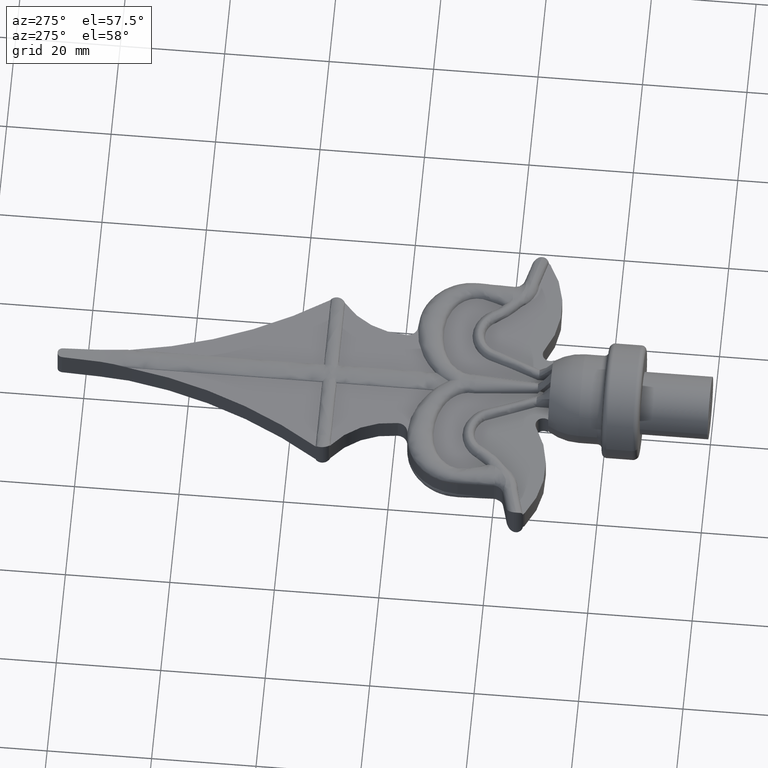
[diagram: clean part render]
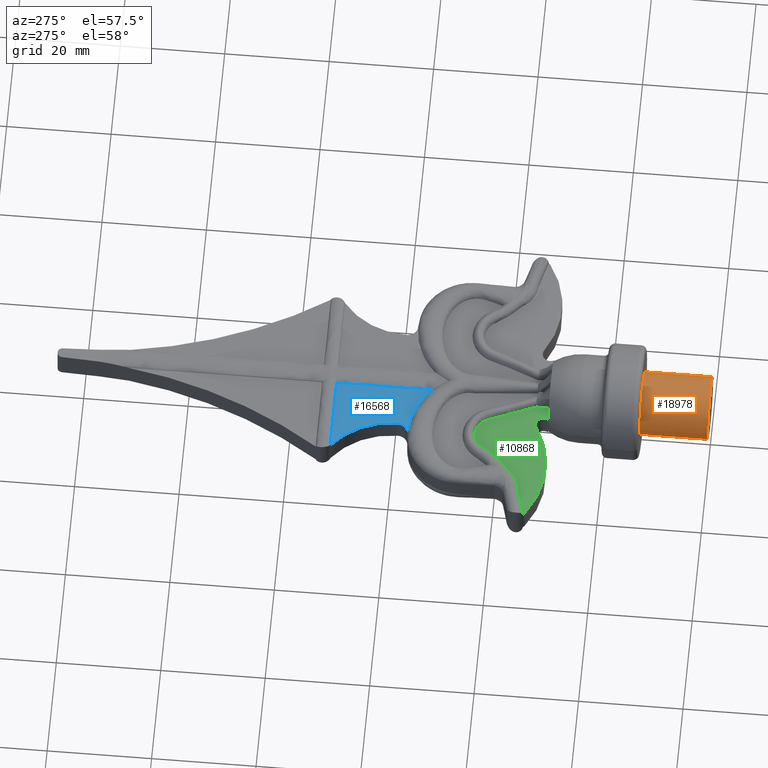
[diagram: same view with three faces highlighted in distinct colors, each labeled with its STEP entity id]
A machine part, auxiliary view with three faces highlighted in distinct colors.
Their STEP definitions:

[orange] entity #18978 — the highlighted cylindrical surface (bore or boss wall) has radius 6 mm, axis along (-0, 1, -0).
#1742 = DIRECTION ( 'NONE',  ( -1.000000000000000000, 0.000000000000000000, 0.000000000000000000 ) ) ;
#3047 = CYLINDRICAL_SURFACE ( 'NONE', #8148, 6.000000000000000000 ) ;
#3052 = CARTESIAN_POINT ( 'NONE',  ( -6.000000000000000000, -1.118453539899895328E-17, 0.000000000000000000 ) ) ;
#4121 = DIRECTION ( 'NONE',  ( -1.864089233166492342E-18, 1.000000000000000000, -0.000000000000000000 ) ) ;
#4373 = ORIENTED_EDGE ( 'NONE', *, *, #15770, .F. ) ;
#5083 = AXIS2_PLACEMENT_3D ( 'NONE', #8704, #4121, #16316 ) ;
#5692 = CARTESIAN_POINT ( 'NONE',  ( 0.000000000000000000, 0.000000000000000000, 0.000000000000000000 ) ) ;
#5894 = DIRECTION ( 'NONE',  ( -1.864089233166492342E-18, 1.000000000000000000, -0.000000000000000000 ) ) ;
#7045 = VERTEX_POINT ( 'NONE', #3052 ) ;
#7116 = CIRCLE ( 'NONE', #14024, 6.000000000000000000 ) ;
#7944 = CARTESIAN_POINT ( 'NONE',  ( -5.683531300914551683E-17, 30.48958815807356615, 0.000000000000000000 ) ) ;
#8148 = AXIS2_PLACEMENT_3D ( 'NONE', #7944, #14108, #1742 ) ;
#8704 = CARTESIAN_POINT ( 'NONE',  ( -2.423316003116439928E-17, 13.00000000000000178, 0.000000000000000000 ) ) ;
#10043 = EDGE_LOOP ( 'NONE', ( #19473 ) ) ;
#13666 = CARTESIAN_POINT ( 'NONE',  ( -6.000000000000000000, 13.00000000000000178, 0.000000000000000000 ) ) ;
#14024 = AXIS2_PLACEMENT_3D ( 'NONE', #5692, #5894, #17896 ) ;
#14108 = DIRECTION ( 'NONE',  ( -1.864089233166492342E-18, 1.000000000000000000, -0.000000000000000000 ) ) ;
#14517 = EDGE_CURVE ( 'NONE', #7045, #7045, #7116, .T. ) ;
#14990 = CIRCLE ( 'NONE', #5083, 6.000000000000000000 ) ;
#15184 = VERTEX_POINT ( 'NONE', #13666 ) ;
#15231 = FACE_OUTER_BOUND ( 'NONE', #10043, .T. ) ;
#15770 = EDGE_CURVE ( 'NONE', #15184, #15184, #14990, .T. ) ;
#16316 = DIRECTION ( 'NONE',  ( -1.000000000000000000, 0.000000000000000000, 0.000000000000000000 ) ) ;
#16751 = EDGE_LOOP ( 'NONE', ( #4373 ) ) ;
#17896 = DIRECTION ( 'NONE',  ( -1.000000000000000000, -1.864089233166492342E-18, 0.000000000000000000 ) ) ;
#18978 = ADVANCED_FACE ( 'NONE', ( #19764, #15231 ), #3047, .T. ) ;
#19473 = ORIENTED_EDGE ( 'NONE', *, *, #14517, .T. ) ;
#19764 = FACE_OUTER_BOUND ( 'NONE', #16751, .T. ) ;

[blue] entity #16568 — the highlighted planar face has unit normal (-0, 0, 1).
#352 = AXIS2_PLACEMENT_3D ( 'NONE', #13526, #18126, #12109 ) ;
#579 = CARTESIAN_POINT ( 'NONE',  ( -16.20000000000000284, 71.40000000000003411, 2.250000000000000444 ) ) ;
#1074 = CARTESIAN_POINT ( 'NONE',  ( -12.00000000000000000, 56.99999999999999289, 2.250000000000000444 ) ) ;
#2100 = FACE_OUTER_BOUND ( 'NONE', #2759, .T. ) ;
#2101 = DIRECTION ( 'NONE',  ( 1.000000000000000000, -0.000000000000000000, -0.000000000000000000 ) ) ;
#2413 = CARTESIAN_POINT ( 'NONE',  ( -10.00000000000000178, 58.99999999999999289, 2.250000000000000444 ) ) ;
#2493 = ORIENTED_EDGE ( 'NONE', *, *, #11876, .T. ) ;
#2523 = EDGE_CURVE ( 'NONE', #6347, #18268, #12232, .T. ) ;
#2615 = CARTESIAN_POINT ( 'NONE',  ( -4.596722235691423464, 55.39362691858608656, 2.250000000000000444 ) ) ;
#2759 = EDGE_LOOP ( 'NONE', ( #7895, #18683, #19109, #2493, #18676 ) ) ;
#3224 = PLANE ( 'NONE',  #3559 ) ;
#3559 = AXIS2_PLACEMENT_3D ( 'NONE', #9006, #19700, #10539 ) ;
#4460 = EDGE_CURVE ( 'NONE', #14388, #17082, #17192, .T. ) ;
#5526 = DIRECTION ( 'NONE',  ( -0.000000000000000000, -0.000000000000000000, -1.000000000000000000 ) ) ;
#6347 = VERTEX_POINT ( 'NONE', #579 ) ;
#6425 = CARTESIAN_POINT ( 'NONE',  ( -2.000000000000042633, 129.5000000000000000, 2.250000000000000444 ) ) ;
#6866 = VERTEX_POINT ( 'NONE', #14698 ) ;
#7895 = ORIENTED_EDGE ( 'NONE', *, *, #11332, .T. ) ;
#8088 = CARTESIAN_POINT ( 'NONE',  ( 19.99999999999998224, 71.40000000000003411, 2.250000000000000444 ) ) ;
#9006 = CARTESIAN_POINT ( 'NONE',  ( 0.000000000000000000, 0.000000000000000000, 2.250000000000000444 ) ) ;
#10163 = CARTESIAN_POINT ( 'NONE',  ( -1.999999999999988676, 52.85543771738596064, 2.250000000000000444 ) ) ;
#10539 = DIRECTION ( 'NONE',  ( 1.000000000000000000, 0.000000000000000000, 0.000000000000000000 ) ) ;
#11111 = DIRECTION ( 'NONE',  ( 4.081702296416009587E-16, -1.000000000000000000, 0.000000000000000000 ) ) ;
#11210 = EDGE_CURVE ( 'NONE', #18268, #6866, #13173, .T. ) ;
#11332 = EDGE_CURVE ( 'NONE', #17082, #6866, #16621, .T. ) ;
#11725 = VECTOR ( 'NONE', #11111, 1000.000000000000000 ) ;
#11876 = EDGE_CURVE ( 'NONE', #6347, #14388, #16499, .T. ) ;
#12109 = DIRECTION ( 'NONE',  ( -1.000000000000000000, 0.000000000000000000, 0.000000000000000000 ) ) ;
#12232 = LINE ( 'NONE', #8088, #19409 ) ;
#13173 = LINE ( 'NONE', #6425, #11725 ) ;
#13446 = CARTESIAN_POINT ( 'NONE',  ( -8.179364468974945623, 56.99999999999978684, 2.250000000000000888 ) ) ;
#13486 = CARTESIAN_POINT ( 'NONE',  ( -2.000000000000018652, 71.40000000000003411, 2.250000000000000444 ) ) ;
#13526 = CARTESIAN_POINT ( 'NONE',  ( -25.50000000000002132, 59.00000000000000711, 2.250000000000000444 ) ) ;
#14320 = AXIS2_PLACEMENT_3D ( 'NONE', #17737, #5526, #17803 ) ;
#14388 = VERTEX_POINT ( 'NONE', #2413 ) ;
#14698 = CARTESIAN_POINT ( 'NONE',  ( -1.999999999999988676, 52.85543771738596064, 2.250000000000000444 ) ) ;
#16499 = CIRCLE ( 'NONE', #352, 15.50000000000002132 ) ;
#16568 = ADVANCED_FACE ( 'NONE', ( #2100 ), #3224, .T. ) ;
#16621 = B_SPLINE_CURVE_WITH_KNOTS ( 'NONE', 3,
 ( #1074, #13446, #2615, #10163 ),
 .UNSPECIFIED., .F., .F.,
 ( 4, 4 ),
 ( 0.5506758038016321688, 0.7962666604034440709 ),
 .UNSPECIFIED. ) ;
#16624 = CARTESIAN_POINT ( 'NONE',  ( -12.00000000000000000, 56.99999999999999289, 2.250000000000000444 ) ) ;
#17082 = VERTEX_POINT ( 'NONE', #16624 ) ;
#17192 = CIRCLE ( 'NONE', #14320, 2.000000000000001776 ) ;
#17737 = CARTESIAN_POINT ( 'NONE',  ( -12.00000000000000000, 59.00000000000000000, 2.250000000000000444 ) ) ;
#17803 = DIRECTION ( 'NONE',  ( -1.000000000000000000, 0.000000000000000000, 0.000000000000000000 ) ) ;
#18126 = DIRECTION ( 'NONE',  ( -0.000000000000000000, -0.000000000000000000, -1.000000000000000000 ) ) ;
#18268 = VERTEX_POINT ( 'NONE', #13486 ) ;
#18676 = ORIENTED_EDGE ( 'NONE', *, *, #4460, .T. ) ;
#18683 = ORIENTED_EDGE ( 'NONE', *, *, #11210, .F. ) ;
#19109 = ORIENTED_EDGE ( 'NONE', *, *, #2523, .F. ) ;
#19409 = VECTOR ( 'NONE', #2101, 1000.000000000000000 ) ;
#19700 = DIRECTION ( 'NONE',  ( -0.000000000000000000, 0.000000000000000000, 1.000000000000000000 ) ) ;

[green] entity #10868 — the highlighted planar face has unit normal (-0, 0, 1).
#429 = CARTESIAN_POINT ( 'NONE',  ( -13.31177852487386204, 43.41147693827025478, 2.249999999999924505 ) ) ;
#646 = DIRECTION ( 'NONE',  ( 0.9659258262890696445, 0.2588190451025154104, -0.000000000000000000 ) ) ;
#693 = CIRCLE ( 'NONE', #16238, 1.499999999999989120 ) ;
#757 = CARTESIAN_POINT ( 'NONE',  ( -11.44019418438630709, 44.16247215501621781, 2.250000000000000000 ) ) ;
#784 = DIRECTION ( 'NONE',  ( 1.000000000000000000, 2.996116219720568270E-18, 0.000000000000000000 ) ) ;
#952 = CARTESIAN_POINT ( 'NONE',  ( -10.33170953998763508, 44.09136382090750317, 2.249999999999750866 ) ) ;
#1190 = VERTEX_POINT ( 'NONE', #11972 ) ;
#1229 = CARTESIAN_POINT ( 'NONE',  ( -20.26695515471022091, 35.72178654917124163, 2.250000000000001332 ) ) ;
#1337 = EDGE_CURVE ( 'NONE', #17253, #18230, #3192, .T. ) ;
#1393 = CARTESIAN_POINT ( 'NONE',  ( -14.24327354598395168, 42.26565313336460861, 2.250000000000000444 ) ) ;
#1480 = DIRECTION ( 'NONE',  ( 0.000000000000000000, 1.000000000000000000, 0.000000000000000000 ) ) ;
#1735 = DIRECTION ( 'NONE',  ( 0.000000000000000000, 0.000000000000000000, 1.000000000000000000 ) ) ;
#1809 = CARTESIAN_POINT ( 'NONE',  ( -18.07031756990968319, 48.00000000000000000, 2.250000000000000444 ) ) ;
#1928 = EDGE_CURVE ( 'NONE', #2239, #17550, #18694, .T. ) ;
#1967 = CARTESIAN_POINT ( 'NONE',  ( -12.34269365402935037, 43.95572375206690907, 2.249999999999998668 ) ) ;
#2049 = EDGE_CURVE ( 'NONE', #7970, #17550, #6356, .T. ) ;
#2107 = CARTESIAN_POINT ( 'NONE',  ( -14.07025478242304395, 42.59810313699654216, 2.249999990243948478 ) ) ;
#2239 = VERTEX_POINT ( 'NONE', #18534 ) ;
#2432 = CARTESIAN_POINT ( 'NONE',  ( -10.14934559321454621, 44.04468762114358071, 2.249999999999997780 ) ) ;
#2498 = CARTESIAN_POINT ( 'NONE',  ( -9.625324760788652512, 43.85343205065193217, 2.249999999999859224 ) ) ;
#3106 = AXIS2_PLACEMENT_3D ( 'NONE', #5655, #13335, #7154 ) ;
#3116 = ORIENTED_EDGE ( 'NONE', *, *, #1337, .T. ) ;
#3192 = CIRCLE ( 'NONE', #12472, 18.00000000000000355 ) ;
#3658 = CARTESIAN_POINT ( 'NONE',  ( -13.45584100450558651, 43.29060186746644945, 2.250000000000001332 ) ) ;
#3962 = CARTESIAN_POINT ( 'NONE',  ( -17.31420461653133103, 38.28431008835254090, 2.249999992650221881 ) ) ;
#4047 = CARTESIAN_POINT ( 'NONE',  ( -8.066711156583750153, 42.56630476317963030, 2.249999999999999112 ) ) ;
#4230 = CARTESIAN_POINT ( 'NONE',  ( -14.68669953890310431, 41.53173526344209421, 2.249999998731414763 ) ) ;
#4356 = AXIS2_PLACEMENT_3D ( 'NONE', #14834, #19256, #8690 ) ;
#4891 = ORIENTED_EDGE ( 'NONE', *, *, #19318, .F. ) ;
#5387 = CARTESIAN_POINT ( 'NONE',  ( -10.88057783963421521, 44.17185871772825578, 2.249999999999983125 ) ) ;
#5430 = EDGE_CURVE ( 'NONE', #18951, #7040, #10978, .T. ) ;
#5435 = EDGE_CURVE ( 'NONE', #2239, #17253, #5730, .T. ) ;
#5449 = CARTESIAN_POINT ( 'NONE',  ( -7.518989941801796917, 41.39756993944047991, 2.250000000000012434 ) ) ;
#5525 = ORIENTED_EDGE ( 'NONE', *, *, #14828, .T. ) ;
#5579 = CARTESIAN_POINT ( 'NONE',  ( -8.829245585038044908, 43.37307299607569888, 2.249999999999998668 ) ) ;
#5594 = CARTESIAN_POINT ( 'NONE',  ( -19.89059049936917489, 35.97614178533072504, 2.250000000000000000 ) ) ;
#5643 = CARTESIAN_POINT ( 'NONE',  ( -11.80776714339136824, 44.10740569738698014, 2.250000000000000000 ) ) ;
#5655 = CARTESIAN_POINT ( 'NONE',  ( 0.000000000000000000, 0.000000000000000000, 2.250000000000000444 ) ) ;
#5660 = CARTESIAN_POINT ( 'NONE',  ( -23.02176670321621188, 34.87286019793960179, 2.250000000007248424 ) ) ;
#5730 = CIRCLE ( 'NONE', #4356, 1.999999999999998224 ) ;
#5892 = CARTESIAN_POINT ( 'NONE',  ( -15.25241784645156962, 40.59541041581877607, 2.249999997112965389 ) ) ;
#5998 = EDGE_CURVE ( 'NONE', #18230, #9043, #693, .T. ) ;
#6356 = B_SPLINE_CURVE_WITH_KNOTS ( 'NONE', 3,
 ( #14729, #14924, #13270, #5594, #1229, #7101, #19414, #14791, #19545, #11915, #8777, #19481, #5660, #16327 ),
 .UNSPECIFIED., .F., .F.,
 ( 4, 2, 2, 2, 2, 2, 4 ),
 ( 0.002578164299109813283, 0.003926844289410313070, 0.005275524279710813724, 0.005949864274861053209, 0.006624204270011294429, 0.007298544265161534782, 0.007972884260311775134 ),
 .UNSPECIFIED. ) ;
#6500 = VECTOR ( 'NONE', #646, 1000.000000000000114 ) ;
#6835 = B_SPLINE_CURVE_WITH_KNOTS ( 'NONE', 3,
 ( #14822, #7190, #11819, #3962, #19377, #5892, #4230, #1393 ),
 .UNSPECIFIED., .F., .F.,
 ( 4, 1, 1, 1, 1, 4 ),
 ( 0.4347103018251624040, 0.4423466900390886636, 0.5624244810687821783, 0.7223623353257195845, 0.7823797542218012824, 1.000000000000000000 ),
 .UNSPECIFIED. ) ;
#6956 = CARTESIAN_POINT ( 'NONE',  ( -6.915222855921008716, 39.84328228786844761, 2.250000000000000444 ) ) ;
#7012 = CARTESIAN_POINT ( 'NONE',  ( -4.072256267822977449, 30.48958815807356615, 2.250000000000000444 ) ) ;
#7040 = VERTEX_POINT ( 'NONE', #15305 ) ;
#7083 = CARTESIAN_POINT ( 'NONE',  ( -6.356166378639882986, 38.47077041483461812, 2.250000000000000888 ) ) ;
#7101 = CARTESIAN_POINT ( 'NONE',  ( -20.86524400551114056, 35.40935116516035208, 2.250000000000000888 ) ) ;
#7154 = DIRECTION ( 'NONE',  ( 1.000000000000000000, 0.000000000000000000, 0.000000000000000000 ) ) ;
#7172 = ORIENTED_EDGE ( 'NONE', *, *, #5430, .T. ) ;
#7190 = CARTESIAN_POINT ( 'NONE',  ( -18.60583874048234065, 37.24991720310759291, 2.249999990268272132 ) ) ;
#7245 = CARTESIAN_POINT ( 'NONE',  ( -23.24732024590226587, 34.85958948805217972, 2.250000048276047604 ) ) ;
#7970 = VERTEX_POINT ( 'NONE', #11912 ) ;
#8236 = CARTESIAN_POINT ( 'NONE',  ( -13.01033372942633370, 43.62638340152606276, 2.249999999999924061 ) ) ;
#8380 = FACE_OUTER_BOUND ( 'NONE', #11016, .T. ) ;
#8427 = CARTESIAN_POINT ( 'NONE',  ( -7.715563067620871962, 41.91731434991618244, 2.250000000000014655 ) ) ;
#8498 = CARTESIAN_POINT ( 'NONE',  ( -8.297340931254918672, 42.86012093535639167, 2.250000000000000444 ) ) ;
#8626 = CARTESIAN_POINT ( 'NONE',  ( -8.421247070456450601, 42.99794704568424919, 2.249999999999606093 ) ) ;
#8690 = DIRECTION ( 'NONE',  ( -1.000000000000000000, 0.000000000000000000, 0.000000000000000000 ) ) ;
#8777 = CARTESIAN_POINT ( 'NONE',  ( -22.34818121732498852, 34.93520325222687006, 2.250000000000000888 ) ) ;
#8884 = LINE ( 'NONE', #13560, #14614 ) ;
#9043 = VERTEX_POINT ( 'NONE', #14279 ) ;
#9118 = VERTEX_POINT ( 'NONE', #10382 ) ;
#9254 = ORIENTED_EDGE ( 'NONE', *, *, #5435, .T. ) ;
#9497 = CARTESIAN_POINT ( 'NONE',  ( -4.072256267822977449, 30.48958815807356615, 2.250000000000000444 ) ) ;
#9585 = ORIENTED_EDGE ( 'NONE', *, *, #2049, .T. ) ;
#9785 = CARTESIAN_POINT ( 'NONE',  ( -12.51806618740802790, 43.88596923130245386, 2.250000000000000888 ) ) ;
#9950 = EDGE_CURVE ( 'NONE', #9118, #18951, #8884, .T. ) ;
#9988 = ORIENTED_EDGE ( 'NONE', *, *, #18496, .F. ) ;
#10104 = CARTESIAN_POINT ( 'NONE',  ( -11.98826258732607286, 44.06603730950205033, 2.249999999999999556 ) ) ;
#10171 = CARTESIAN_POINT ( 'NONE',  ( -9.133701394630067583, 43.58884626250382155, 2.249999999999999112 ) ) ;
#10382 = CARTESIAN_POINT ( 'NONE',  ( -6.352031842562606556, 30.48958815807356615, 2.250000000000000444 ) ) ;
#10868 = ADVANCED_FACE ( 'NONE', ( #8380 ), #17928, .T. ) ;
#10978 = LINE ( 'NONE', #7012, #16710 ) ;
#11006 = CARTESIAN_POINT ( 'NONE',  ( -31.20572391110857069, 32.72714165291930755, 2.250000048276047604 ) ) ;
#11016 = EDGE_LOOP ( 'NONE', ( #16042, #7172, #9988, #4891, #9585, #15553, #9254, #3116, #11955, #5525 ) ) ;
#11575 = CARTESIAN_POINT ( 'NONE',  ( -8.687005089680656766, 43.25462848237498292, 2.249999999999606981 ) ) ;
#11619 = DIRECTION ( 'NONE',  ( -0.000000000000000000, -0.000000000000000000, -1.000000000000000000 ) ) ;
#11639 = CARTESIAN_POINT ( 'NONE',  ( -9.796150539297732607, 43.92552390093240433, 2.249999999999997780 ) ) ;
#11704 = CARTESIAN_POINT ( 'NONE',  ( -6.071839638802053685, 37.78646118006247434, 2.250000000000000888 ) ) ;
#11819 = CARTESIAN_POINT ( 'NONE',  ( -18.19819124725963277, 37.55437432447717327, 2.249999991000536159 ) ) ;
#11912 = CARTESIAN_POINT ( 'NONE',  ( -18.63026680043885008, 37.23178304477577427, 2.249999990224488933 ) ) ;
#11915 = CARTESIAN_POINT ( 'NONE',  ( -22.12929560394912798, 34.97719870817370946, 2.250000000000000000 ) ) ;
#11955 = ORIENTED_EDGE ( 'NONE', *, *, #5998, .T. ) ;
#11972 = CARTESIAN_POINT ( 'NONE',  ( -14.24327354598395168, 42.26565313336460861, 2.250000000000000444 ) ) ;
#12472 = AXIS2_PLACEMENT_3D ( 'NONE', #1809, #1735, #17035 ) ;
#12799 = CARTESIAN_POINT ( 'NONE',  ( -13.85391270685128973, 42.89752940792330094, 2.250000000000001776 ) ) ;
#13187 = CARTESIAN_POINT ( 'NONE',  ( -9.294642575461724121, 43.68547275881459058, 2.249999999999857891 ) ) ;
#13253 = CARTESIAN_POINT ( 'NONE',  ( -7.962473076760844037, 42.41163590871766331, 2.249999999999967581 ) ) ;
#13270 = CARTESIAN_POINT ( 'NONE',  ( -19.20951035789560635, 36.55290099472207999, 2.250000000000000888 ) ) ;
#13335 = DIRECTION ( 'NONE',  ( -0.000000000000000000, 0.000000000000000000, 1.000000000000000000 ) ) ;
#13560 = CARTESIAN_POINT ( 'NONE',  ( -5.683531300914551683E-17, 30.48958815807356615, 2.250000000000000444 ) ) ;
#14279 = CARTESIAN_POINT ( 'NONE',  ( -6.738754226778812750, 30.48958815807356615, 2.250000000000000444 ) ) ;
#14310 = LINE ( 'NONE', #15749, #18616 ) ;
#14330 = CARTESIAN_POINT ( 'NONE',  ( -12.85164795321305498, 43.72137060576334022, 2.250000000000000444 ) ) ;
#14614 = VECTOR ( 'NONE', #19510, 1000.000000000000000 ) ;
#14711 = CARTESIAN_POINT ( 'NONE',  ( -7.786608475400969454, 42.08777783488685742, 2.249999999999966693 ) ) ;
#14729 = CARTESIAN_POINT ( 'NONE',  ( -18.63026680043885008, 37.23178304477577427, 2.249999990224488933 ) ) ;
#14791 = CARTESIAN_POINT ( 'NONE',  ( -21.48728981658582882, 35.15559720074774219, 2.250000000000555112 ) ) ;
#14822 = CARTESIAN_POINT ( 'NONE',  ( -18.63026680043885008, 37.23178304477577427, 2.249999990224488933 ) ) ;
#14828 = EDGE_CURVE ( 'NONE', #9043, #9118, #14310, .T. ) ;
#14834 = CARTESIAN_POINT ( 'NONE',  ( -27.00000000000001066, 34.72367627323978923, 2.250000000000000444 ) ) ;
#14875 = CARTESIAN_POINT ( 'NONE',  ( -8.774639813069992300, 32.58603311794799851, 2.250000000000000444 ) ) ;
#14893 = CARTESIAN_POINT ( 'NONE',  ( -28.11621030376129937, 33.06413580739476288, 2.250000000000000444 ) ) ;
#14924 = CARTESIAN_POINT ( 'NONE',  ( -18.90292761633454077, 36.87533338064769595, 2.250000000000003997 ) ) ;
#15305 = CARTESIAN_POINT ( 'NONE',  ( -4.072256267822977449, 33.00000000000000000, 2.250000000000000444 ) ) ;
#15553 = ORIENTED_EDGE ( 'NONE', *, *, #1928, .F. ) ;
#15749 = CARTESIAN_POINT ( 'NONE',  ( -9.135034961300437055E-17, 30.48958815807356615, 2.250000000000000444 ) ) ;
#16042 = ORIENTED_EDGE ( 'NONE', *, *, #9950, .T. ) ;
#16056 = CARTESIAN_POINT ( 'NONE',  ( -5.214474533870726347, 35.73531237789545401, 2.250000000000000444 ) ) ;
#16123 = CARTESIAN_POINT ( 'NONE',  ( -7.582476022438537022, 41.57183697445930903, 2.250000000000014655 ) ) ;
#16187 = CARTESIAN_POINT ( 'NONE',  ( -10.69658883530532023, 44.15476124959459980, 2.249999999999751310 ) ) ;
#16238 = AXIS2_PLACEMENT_3D ( 'NONE', #19439, #11619, #17961 ) ;
#16246 = CARTESIAN_POINT ( 'NONE',  ( -7.190444394705353126, 40.53128540747010788, 2.250000000000011546 ) ) ;
#16327 = CARTESIAN_POINT ( 'NONE',  ( -23.24732024590226587, 34.85958948805217972, 2.250000048276047604 ) ) ;
#16710 = VECTOR ( 'NONE', #1480, 1000.000000000000000 ) ;
#17035 = DIRECTION ( 'NONE',  ( -1.000000000000000000, 0.000000000000000000, 0.000000000000000000 ) ) ;
#17253 = VERTEX_POINT ( 'NONE', #14893 ) ;
#17331 = CARTESIAN_POINT ( 'NONE',  ( -14.24327354598395168, 42.26565313336460861, 2.250000000000000444 ) ) ;
#17550 = VERTEX_POINT ( 'NONE', #7245 ) ;
#17658 = CARTESIAN_POINT ( 'NONE',  ( -11.25175974035353832, 44.17585994990635356, 2.249999999999983569 ) ) ;
#17790 = CARTESIAN_POINT ( 'NONE',  ( -4.072256267822977449, 33.00000000000000000, 2.250000000000000444 ) ) ;
#17928 = PLANE ( 'NONE',  #3106 ) ;
#17961 = DIRECTION ( 'NONE',  ( -1.000000000000000000, 0.000000000000000000, 0.000000000000000000 ) ) ;
#17982 = B_SPLINE_CURVE_WITH_KNOTS ( 'NONE', 3,
 ( #17331, #2107, #12799, #3658, #429, #8236, #14330, #9785, #1967, #10104, #5643, #757, #17658, #5387, #16187, #952, #2432, #11639, #2498, #13187, #10171, #5579, #11575, #8626, #8498, #4047, #13253, #14711, #8427, #16123, #5449, #16246, #6956, #7083, #11704, #16056, #19133, #17790 ),
 .UNSPECIFIED., .F., .F.,
 ( 4, 2, 2, 2, 2, 2, 2, 2, 2, 2, 2, 2, 2, 2, 2, 2, 2, 2, 4 ),
 ( 0.000000000000000000, 0.001107851983347251257, 0.001661777975020882090, 0.002215703966694513357, 0.002769629958368143973, 0.003323555950041775023, 0.003877481941715406073, 0.004431407933389037122, 0.004985333925062667738, 0.005539259916736299222, 0.006093185908409930705, 0.006647111900083562189, 0.007201037891757193672, 0.007754963883430825156, 0.008308889875104455772, 0.008862815866778088122, 0.01107851983347261059, 0.01329422380016713132, 0.01772563173355617624 ),
 .UNSPECIFIED. ) ;
#18230 = VERTEX_POINT ( 'NONE', #14875 ) ;
#18496 = EDGE_CURVE ( 'NONE', #1190, #7040, #17982, .T. ) ;
#18534 = CARTESIAN_POINT ( 'NONE',  ( -28.53580600839210035, 33.44254399880956896, 2.250000000000000444 ) ) ;
#18616 = VECTOR ( 'NONE', #784, 1000.000000000000000 ) ;
#18694 = LINE ( 'NONE', #11006, #6500 ) ;
#18951 = VERTEX_POINT ( 'NONE', #9497 ) ;
#19133 = CARTESIAN_POINT ( 'NONE',  ( -4.636145832005186485, 34.37065768290371182, 2.250000000000000888 ) ) ;
#19256 = DIRECTION ( 'NONE',  ( 0.000000000000000000, 0.000000000000000000, 1.000000000000000000 ) ) ;
#19318 = EDGE_CURVE ( 'NONE', #7970, #1190, #6835, .T. ) ;
#19377 = CARTESIAN_POINT ( 'NONE',  ( -16.36739950266298393, 39.25397055138984825, 2.249999994605742959 ) ) ;
#19414 = CARTESIAN_POINT ( 'NONE',  ( -21.07087769535412392, 35.31599737283099927, 2.250000000000555556 ) ) ;
#19439 = CARTESIAN_POINT ( 'NONE',  ( -8.000000000000014211, 31.30153587777700963, 2.250000000000000444 ) ) ;
#19481 = CARTESIAN_POINT ( 'NONE',  ( -22.79535115938974954, 34.88483495075234231, 2.250000000000000000 ) ) ;
#19510 = DIRECTION ( 'NONE',  ( 1.000000000000000000, 1.864089233166492342E-18, 0.000000000000000000 ) ) ;
#19545 = CARTESIAN_POINT ( 'NONE',  ( -21.69903979629238933, 35.08807499747820913, 2.250000000000000444 ) ) ;